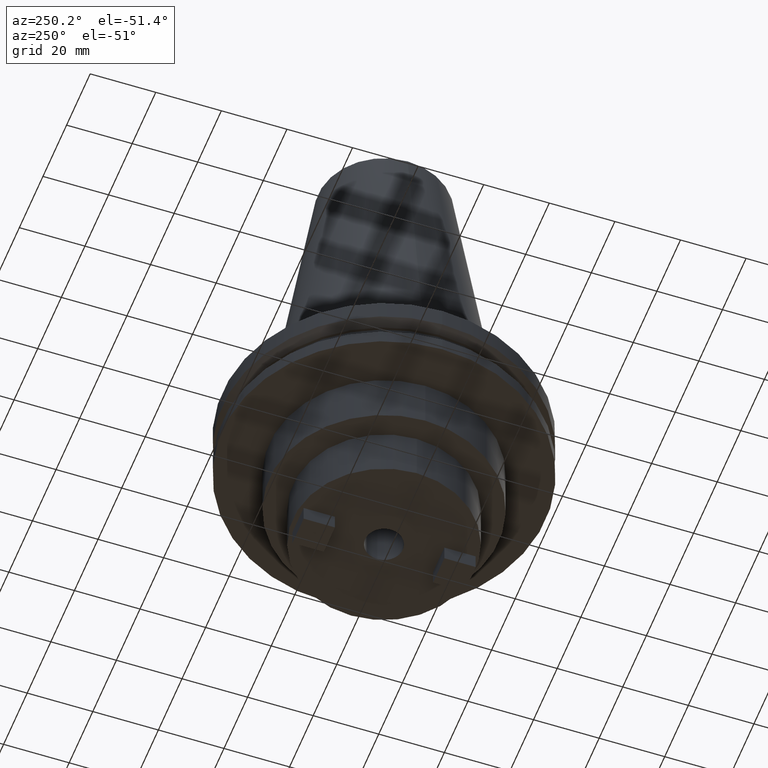
[diagram: clean part render]
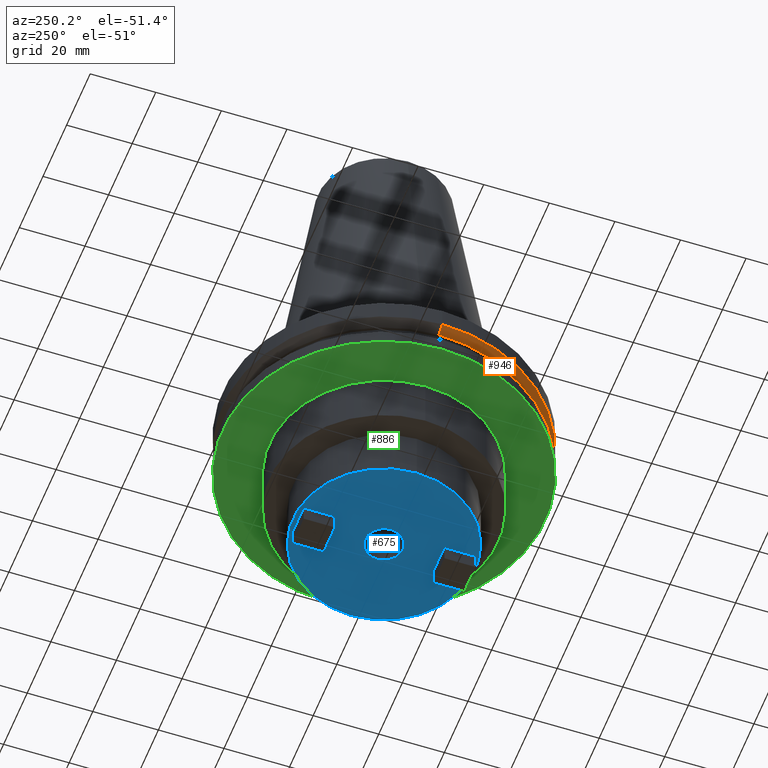
[diagram: same view with three faces highlighted in distinct colors, each labeled with its STEP entity id]
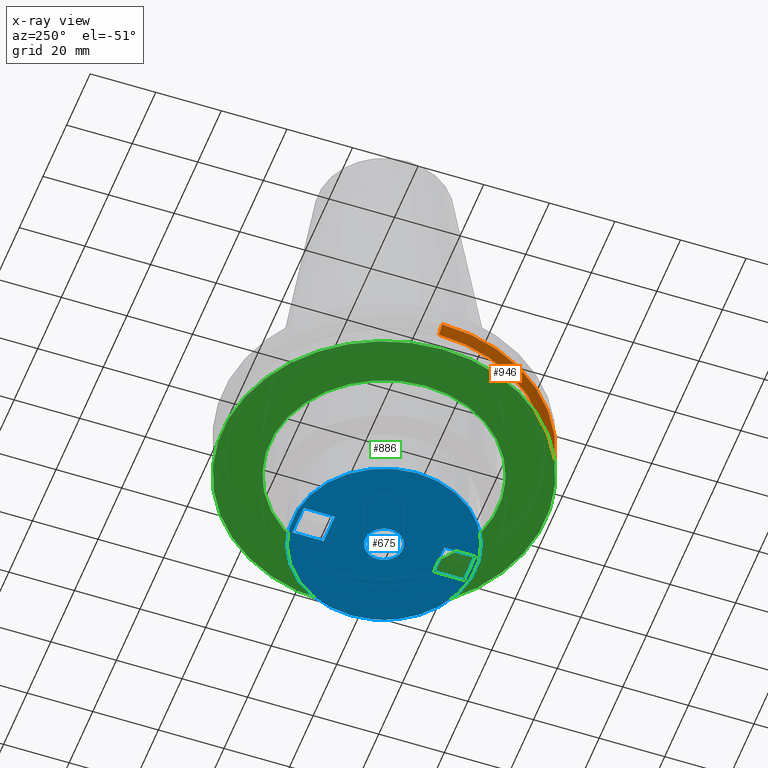
[diagram: x-ray of the same camera — body ghosted, the three highlighted faces saturated]
A machine part, auxiliary view with three faces highlighted in distinct colors.
The next image is the same camera in x-ray (body ghosted, the three faces saturated) — at least one of them is partly hidden behind the body in this view.
Their STEP definitions:

[orange] entity #946 — the highlighted conical surface has half-angle 60 deg.
#17 = AXIS2_PLACEMENT_3D ( 'NONE', #417, #656, #907 ) ;
#24 = EDGE_CURVE ( 'NONE', #980, #34, #575, .T. ) ;
#26 = DIRECTION ( 'NONE',  ( 1.000000000000000000, 0.000000000000000000, 0.000000000000000000 ) ) ;
#34 = VERTEX_POINT ( 'NONE', #73 ) ;
#45 = EDGE_CURVE ( 'NONE', #980, #103, #132, .T. ) ;
#47 = EDGE_LOOP ( 'NONE', ( #393, #561, #582, #827 ) ) ;
#57 = EDGE_CURVE ( 'NONE', #103, #1060, #983, .T. ) ;
#73 = CARTESIAN_POINT ( 'NONE',  ( -49.21500000000000341, 6.027099222003699404E-15, -7.602389855251287187 ) ) ;
#103 = VERTEX_POINT ( 'NONE', #204 ) ;
#132 = CIRCLE ( 'NONE', #271, 46.43919780457007818 ) ;
#151 = CARTESIAN_POINT ( 'NONE',  ( -46.43919780457007818, 5.687161494633754392E-15, -9.204999999999991189 ) ) ;
#156 = DIRECTION ( 'NONE',  ( -0.8660254037844273833, 1.060575238724893110E-16, 0.5000000000000195399 ) ) ;
#186 = CARTESIAN_POINT ( 'NONE',  ( 46.43919780457007818, 0.000000000000000000, -9.204999999999991189 ) ) ;
#204 = CARTESIAN_POINT ( 'NONE',  ( 46.43919780457007818, 0.000000000000000000, -9.204999999999991189 ) ) ;
#271 = AXIS2_PLACEMENT_3D ( 'NONE', #813, #649, #312 ) ;
#312 = DIRECTION ( 'NONE',  ( 1.000000000000000000, 0.000000000000000000, 0.000000000000000000 ) ) ;
#337 = EDGE_CURVE ( 'NONE', #34, #1060, #440, .T. ) ;
#357 = VECTOR ( 'NONE', #526, 1000.000000000000000 ) ;
#393 = ORIENTED_EDGE ( 'NONE', *, *, #24, .F. ) ;
#415 = FACE_OUTER_BOUND ( 'NONE', #47, .T. ) ;
#417 = CARTESIAN_POINT ( 'NONE',  ( 0.000000000000000000, 0.000000000000000000, -7.602389855251287187 ) ) ;
#440 = CIRCLE ( 'NONE', #17, 49.21500000000000341 ) ;
#490 = AXIS2_PLACEMENT_3D ( 'NONE', #660, #585, #26 ) ;
#525 = CARTESIAN_POINT ( 'NONE',  ( 49.21500000000000341, 0.000000000000000000, -7.602389855251287187 ) ) ;
#526 = DIRECTION ( 'NONE',  ( 0.8660254037844273833, 0.000000000000000000, 0.5000000000000195399 ) ) ;
#561 = ORIENTED_EDGE ( 'NONE', *, *, #45, .T. ) ;
#575 = LINE ( 'NONE', #151, #590 ) ;
#582 = ORIENTED_EDGE ( 'NONE', *, *, #57, .T. ) ;
#585 = DIRECTION ( 'NONE',  ( -0.000000000000000000, -0.000000000000000000, 1.000000000000000000 ) ) ;
#590 = VECTOR ( 'NONE', #156, 1000.000000000000000 ) ;
#649 = DIRECTION ( 'NONE',  ( -0.000000000000000000, -0.000000000000000000, 1.000000000000000000 ) ) ;
#656 = DIRECTION ( 'NONE',  ( -0.000000000000000000, -0.000000000000000000, 1.000000000000000000 ) ) ;
#660 = CARTESIAN_POINT ( 'NONE',  ( 0.000000000000000000, 0.000000000000000000, -9.204999999999991189 ) ) ;
#813 = CARTESIAN_POINT ( 'NONE',  ( 0.000000000000000000, 0.000000000000000000, -9.204999999999991189 ) ) ;
#827 = ORIENTED_EDGE ( 'NONE', *, *, #337, .F. ) ;
#907 = DIRECTION ( 'NONE',  ( 1.000000000000000000, 0.000000000000000000, 0.000000000000000000 ) ) ;
#944 = CARTESIAN_POINT ( 'NONE',  ( -46.43919780457007818, 5.857130358318727293E-15, -9.204999999999991189 ) ) ;
#946 = ADVANCED_FACE ( 'NONE', ( #415 ), #1018, .T. ) ;
#980 = VERTEX_POINT ( 'NONE', #944 ) ;
#983 = LINE ( 'NONE', #186, #357 ) ;
#1018 = CONICAL_SURFACE ( 'NONE', #490, 46.43919780457007818, 1.047197551196575205 ) ;
#1060 = VERTEX_POINT ( 'NONE', #525 ) ;

[blue] entity #675 — the highlighted planar face has unit normal (0, -0, 1).
#1 = EDGE_LOOP ( 'NONE', ( #708, #64, #289, #433 ) ) ;
#18 = VERTEX_POINT ( 'NONE', #659 ) ;
#55 = PLANE ( 'NONE',  #615 ) ;
#64 = ORIENTED_EDGE ( 'NONE', *, *, #354, .F. ) ;
#65 = FACE_BOUND ( 'NONE', #1, .T. ) ;
#67 = VERTEX_POINT ( 'NONE', #284 ) ;
#94 = VERTEX_POINT ( 'NONE', #604 ) ;
#95 = LINE ( 'NONE', #456, #1035 ) ;
#99 = VERTEX_POINT ( 'NONE', #517 ) ;
#118 = CARTESIAN_POINT ( 'NONE',  ( 4.762499999999988631, -26.20750000000000668, -50.79999999999999716 ) ) ;
#128 = EDGE_CURVE ( 'NONE', #999, #336, #349, .T. ) ;
#137 = LINE ( 'NONE', #634, #767 ) ;
#142 = CIRCLE ( 'NONE', #350, 5.754999999999987459 ) ;
#146 = DIRECTION ( 'NONE',  ( 1.000000000000000000, -1.456985596620939003E-15, -0.000000000000000000 ) ) ;
#148 = DIRECTION ( 'NONE',  ( 0.000000000000000000, -0.000000000000000000, 1.000000000000000000 ) ) ;
#155 = LINE ( 'NONE', #734, #1070 ) ;
#158 = CIRCLE ( 'NONE', #646, 5.754999999999987459 ) ;
#194 = VECTOR ( 'NONE', #237, 1000.000000000000000 ) ;
#225 = DIRECTION ( 'NONE',  ( 1.000000000000000000, 0.000000000000000000, 0.000000000000000000 ) ) ;
#231 = CARTESIAN_POINT ( 'NONE',  ( 0.000000000000000000, 0.000000000000000000, -50.79999999999999716 ) ) ;
#235 = FACE_BOUND ( 'NONE', #910, .T. ) ;
#237 = DIRECTION ( 'NONE',  ( -2.731847993664259274E-16, 1.000000000000000000, 0.000000000000000000 ) ) ;
#249 = CARTESIAN_POINT ( 'NONE',  ( -4.762500000000017053, -26.20750000000000668, -50.79999999999999716 ) ) ;
#254 = EDGE_CURVE ( 'NONE', #323, #999, #137, .T. ) ;
#273 = CARTESIAN_POINT ( 'NONE',  ( 4.762499999999986855, 16.68250000000001876, -50.79999999999999716 ) ) ;
#284 = CARTESIAN_POINT ( 'NONE',  ( -4.762500000000019718, -16.68249999999999034, -50.79999999999999716 ) ) ;
#289 = ORIENTED_EDGE ( 'NONE', *, *, #576, .F. ) ;
#299 = ORIENTED_EDGE ( 'NONE', *, *, #380, .F. ) ;
#314 = CARTESIAN_POINT ( 'NONE',  ( 0.000000000000000000, 27.80030000000000001, -50.79999999999999716 ) ) ;
#323 = VERTEX_POINT ( 'NONE', #867 ) ;
#330 = CIRCLE ( 'NONE', #601, 27.80030000000000001 ) ;
#336 = VERTEX_POINT ( 'NONE', #489 ) ;
#340 = EDGE_CURVE ( 'NONE', #99, #18, #142, .T. ) ;
#347 = ORIENTED_EDGE ( 'NONE', *, *, #340, .T. ) ;
#349 = LINE ( 'NONE', #273, #951 ) ;
#350 = AXIS2_PLACEMENT_3D ( 'NONE', #574, #739, #501 ) ;
#354 = EDGE_CURVE ( 'NONE', #840, #988, #671, .T. ) ;
#368 = VECTOR ( 'NONE', #653, 1000.000000000000000 ) ;
#380 = EDGE_CURVE ( 'NONE', #625, #323, #155, .T. ) ;
#383 = FACE_OUTER_BOUND ( 'NONE', #1066, .T. ) ;
#405 = FACE_BOUND ( 'NONE', #824, .T. ) ;
#428 = DIRECTION ( 'NONE',  ( -0.000000000000000000, -0.000000000000000000, 1.000000000000000000 ) ) ;
#433 = ORIENTED_EDGE ( 'NONE', *, *, #461, .F. ) ;
#442 = CIRCLE ( 'NONE', #548, 27.80030000000000001 ) ;
#456 = CARTESIAN_POINT ( 'NONE',  ( -4.762500000000017941, 26.20750000000002089, -50.79999999999999716 ) ) ;
#461 = EDGE_CURVE ( 'NONE', #67, #773, #1084, .T. ) ;
#468 = EDGE_CURVE ( 'NONE', #988, #67, #663, .T. ) ;
#489 = CARTESIAN_POINT ( 'NONE',  ( -4.762500000000018829, 16.68250000000002231, -50.79999999999999716 ) ) ;
#492 = CARTESIAN_POINT ( 'NONE',  ( 0.000000000000000000, 0.000000000000000000, -50.79999999999999716 ) ) ;
#501 = DIRECTION ( 'NONE',  ( 1.000000000000000000, 0.000000000000000000, 0.000000000000000000 ) ) ;
#517 = CARTESIAN_POINT ( 'NONE',  ( -5.754999999999987459, 7.047842329093002964E-16, -50.79999999999999716 ) ) ;
#548 = AXIS2_PLACEMENT_3D ( 'NONE', #231, #428, #828 ) ;
#553 = EDGE_CURVE ( 'NONE', #336, #625, #95, .T. ) ;
#562 = DIRECTION ( 'NONE',  ( 1.000000000000000000, 0.000000000000000000, 0.000000000000000000 ) ) ;
#574 = CARTESIAN_POINT ( 'NONE',  ( 0.000000000000000000, 0.000000000000000000, -50.79999999999999716 ) ) ;
#576 = EDGE_CURVE ( 'NONE', #773, #840, #863, .T. ) ;
#597 = DIRECTION ( 'NONE',  ( -1.821231995776175725E-16, -1.000000000000000000, -0.000000000000000000 ) ) ;
#601 = AXIS2_PLACEMENT_3D ( 'NONE', #492, #834, #1087 ) ;
#604 = CARTESIAN_POINT ( 'NONE',  ( 27.80030000000000001, 0.000000000000000000, -50.79999999999999716 ) ) ;
#615 = AXIS2_PLACEMENT_3D ( 'NONE', #314, #148, #562 ) ;
#625 = VERTEX_POINT ( 'NONE', #755 ) ;
#634 = CARTESIAN_POINT ( 'NONE',  ( 4.762499999999981526, 26.20750000000001734, -50.79999999999999716 ) ) ;
#638 = ORIENTED_EDGE ( 'NONE', *, *, #128, .F. ) ;
#640 = CARTESIAN_POINT ( 'NONE',  ( 0.000000000000000000, 0.000000000000000000, -50.79999999999999716 ) ) ;
#646 = AXIS2_PLACEMENT_3D ( 'NONE', #640, #806, #225 ) ;
#648 = DIRECTION ( 'NONE',  ( 1.000000000000000000, -3.642463991552351451E-16, -0.000000000000000000 ) ) ;
#653 = DIRECTION ( 'NONE',  ( -1.000000000000000000, 0.000000000000000000, 0.000000000000000000 ) ) ;
#659 = CARTESIAN_POINT ( 'NONE',  ( 5.754999999999987459, 0.000000000000000000, -50.79999999999999716 ) ) ;
#663 = LINE ( 'NONE', #249, #194 ) ;
#671 = LINE ( 'NONE', #1080, #368 ) ;
#675 = ADVANCED_FACE ( 'NONE', ( #235, #383, #405, #65 ), #55, .F. ) ;
#684 = CARTESIAN_POINT ( 'NONE',  ( -4.762500000000017053, -26.20750000000000668, -50.79999999999999716 ) ) ;
#690 = EDGE_CURVE ( 'NONE', #18, #99, #158, .T. ) ;
#708 = ORIENTED_EDGE ( 'NONE', *, *, #468, .F. ) ;
#711 = VECTOR ( 'NONE', #146, 1000.000000000000000 ) ;
#734 = CARTESIAN_POINT ( 'NONE',  ( 4.762499999999981526, 26.20750000000001734, -50.79999999999999716 ) ) ;
#739 = DIRECTION ( 'NONE',  ( -0.000000000000000000, -0.000000000000000000, 1.000000000000000000 ) ) ;
#755 = CARTESIAN_POINT ( 'NONE',  ( -4.762500000000017941, 26.20750000000002444, -50.79999999999999716 ) ) ;
#767 = VECTOR ( 'NONE', #790, 1000.000000000000000 ) ;
#773 = VERTEX_POINT ( 'NONE', #891 ) ;
#788 = EDGE_CURVE ( 'NONE', #882, #94, #442, .T. ) ;
#790 = DIRECTION ( 'NONE',  ( 6.374311985216615162E-16, -1.000000000000000000, 0.000000000000000000 ) ) ;
#806 = DIRECTION ( 'NONE',  ( -0.000000000000000000, -0.000000000000000000, 1.000000000000000000 ) ) ;
#821 = ORIENTED_EDGE ( 'NONE', *, *, #690, .T. ) ;
#824 = EDGE_LOOP ( 'NONE', ( #821, #347 ) ) ;
#828 = DIRECTION ( 'NONE',  ( 1.000000000000000000, 0.000000000000000000, 0.000000000000000000 ) ) ;
#834 = DIRECTION ( 'NONE',  ( -0.000000000000000000, -0.000000000000000000, 1.000000000000000000 ) ) ;
#840 = VERTEX_POINT ( 'NONE', #841 ) ;
#841 = CARTESIAN_POINT ( 'NONE',  ( 4.762499999999988631, -26.20750000000001023, -50.79999999999999716 ) ) ;
#843 = DIRECTION ( 'NONE',  ( 9.106159978880878627E-17, 1.000000000000000000, -0.000000000000000000 ) ) ;
#850 = DIRECTION ( 'NONE',  ( -1.000000000000000000, 3.642463991552348493E-16, 0.000000000000000000 ) ) ;
#863 = LINE ( 'NONE', #118, #996 ) ;
#867 = CARTESIAN_POINT ( 'NONE',  ( 4.762499999999981526, 26.20750000000001734, -50.79999999999999716 ) ) ;
#879 = ORIENTED_EDGE ( 'NONE', *, *, #553, .F. ) ;
#882 = VERTEX_POINT ( 'NONE', #995 ) ;
#887 = ORIENTED_EDGE ( 'NONE', *, *, #788, .F. ) ;
#891 = CARTESIAN_POINT ( 'NONE',  ( 4.762499999999990408, -16.68250000000000455, -50.79999999999999716 ) ) ;
#899 = EDGE_CURVE ( 'NONE', #94, #882, #330, .T. ) ;
#910 = EDGE_LOOP ( 'NONE', ( #879, #638, #943, #299 ) ) ;
#943 = ORIENTED_EDGE ( 'NONE', *, *, #254, .F. ) ;
#950 = CARTESIAN_POINT ( 'NONE',  ( 4.762499999999986855, 16.68250000000002231, -50.79999999999999716 ) ) ;
#951 = VECTOR ( 'NONE', #850, 1000.000000000000000 ) ;
#988 = VERTEX_POINT ( 'NONE', #684 ) ;
#995 = CARTESIAN_POINT ( 'NONE',  ( -27.80030000000000001, 3.404554841033616429E-15, -50.79999999999999716 ) ) ;
#996 = VECTOR ( 'NONE', #597, 1000.000000000000000 ) ;
#999 = VERTEX_POINT ( 'NONE', #950 ) ;
#1005 = ORIENTED_EDGE ( 'NONE', *, *, #899, .F. ) ;
#1035 = VECTOR ( 'NONE', #843, 1000.000000000000000 ) ;
#1066 = EDGE_LOOP ( 'NONE', ( #1005, #887 ) ) ;
#1067 = CARTESIAN_POINT ( 'NONE',  ( 4.762499999999990408, -16.68250000000000810, -50.79999999999999716 ) ) ;
#1070 = VECTOR ( 'NONE', #648, 1000.000000000000000 ) ;
#1080 = CARTESIAN_POINT ( 'NONE',  ( 4.762499999999988631, -26.20750000000000668, -50.79999999999999716 ) ) ;
#1084 = LINE ( 'NONE', #1067, #711 ) ;
#1087 = DIRECTION ( 'NONE',  ( 1.000000000000000000, 0.000000000000000000, 0.000000000000000000 ) ) ;

[green] entity #886 — the highlighted planar face has unit normal (0, -0, 1).
#43 = EDGE_LOOP ( 'NONE', ( #61, #777 ) ) ;
#44 = DIRECTION ( 'NONE',  ( 1.000000000000000000, 0.000000000000000000, 0.000000000000000000 ) ) ;
#60 = DIRECTION ( 'NONE',  ( 1.000000000000000000, 0.000000000000000000, 0.000000000000000000 ) ) ;
#61 = ORIENTED_EDGE ( 'NONE', *, *, #628, .F. ) ;
#74 = DIRECTION ( 'NONE',  ( -0.000000000000000000, -0.000000000000000000, 1.000000000000000000 ) ) ;
#100 = DIRECTION ( 'NONE',  ( 1.000000000000000000, 0.000000000000000000, 0.000000000000000000 ) ) ;
#107 = CIRCLE ( 'NONE', #697, 49.21499999999998920 ) ;
#150 = CARTESIAN_POINT ( 'NONE',  ( -49.21499999999998920, 6.027099222003697037E-15, -19.04999999999999716 ) ) ;
#179 = DIRECTION ( 'NONE',  ( -0.000000000000000000, -0.000000000000000000, 1.000000000000000000 ) ) ;
#207 = VERTEX_POINT ( 'NONE', #296 ) ;
#265 = FACE_OUTER_BOUND ( 'NONE', #43, .T. ) ;
#286 = CARTESIAN_POINT ( 'NONE',  ( 0.000000000000000000, 0.000000000000000000, -19.04999999999999716 ) ) ;
#296 = CARTESIAN_POINT ( 'NONE',  ( 49.21499999999998920, 0.000000000000000000, -19.04999999999999716 ) ) ;
#320 = CARTESIAN_POINT ( 'NONE',  ( 0.000000000000000000, 0.000000000000000000, -19.04999999999999716 ) ) ;
#333 = VERTEX_POINT ( 'NONE', #991 ) ;
#371 = AXIS2_PLACEMENT_3D ( 'NONE', #963, #558, #60 ) ;
#419 = VERTEX_POINT ( 'NONE', #150 ) ;
#463 = EDGE_LOOP ( 'NONE', ( #900, #736 ) ) ;
#558 = DIRECTION ( 'NONE',  ( -0.000000000000000000, -0.000000000000000000, 1.000000000000000000 ) ) ;
#577 = DIRECTION ( 'NONE',  ( 1.000000000000000000, 0.000000000000000000, 0.000000000000000000 ) ) ;
#593 = VERTEX_POINT ( 'NONE', #627 ) ;
#616 = EDGE_CURVE ( 'NONE', #419, #207, #107, .T. ) ;
#627 = CARTESIAN_POINT ( 'NONE',  ( -34.92499999999999716, 4.277078946022130887E-15, -19.04999999999999716 ) ) ;
#628 = EDGE_CURVE ( 'NONE', #207, #419, #875, .T. ) ;
#633 = AXIS2_PLACEMENT_3D ( 'NONE', #837, #792, #44 ) ;
#697 = AXIS2_PLACEMENT_3D ( 'NONE', #286, #179, #1033 ) ;
#733 = AXIS2_PLACEMENT_3D ( 'NONE', #320, #74, #577 ) ;
#736 = ORIENTED_EDGE ( 'NONE', *, *, #928, .T. ) ;
#738 = EDGE_CURVE ( 'NONE', #333, #593, #770, .T. ) ;
#741 = FACE_BOUND ( 'NONE', #463, .T. ) ;
#745 = CARTESIAN_POINT ( 'NONE',  ( 0.000000000000000000, 49.21499999999998920, -19.04999999999999716 ) ) ;
#770 = CIRCLE ( 'NONE', #371, 34.92499999999999716 ) ;
#777 = ORIENTED_EDGE ( 'NONE', *, *, #616, .F. ) ;
#792 = DIRECTION ( 'NONE',  ( -0.000000000000000000, -0.000000000000000000, 1.000000000000000000 ) ) ;
#837 = CARTESIAN_POINT ( 'NONE',  ( 0.000000000000000000, 0.000000000000000000, -19.04999999999999716 ) ) ;
#847 = PLANE ( 'NONE',  #962 ) ;
#875 = CIRCLE ( 'NONE', #633, 49.21499999999998920 ) ;
#886 = ADVANCED_FACE ( 'NONE', ( #265, #741 ), #847, .F. ) ;
#900 = ORIENTED_EDGE ( 'NONE', *, *, #738, .T. ) ;
#917 = DIRECTION ( 'NONE',  ( 0.000000000000000000, -0.000000000000000000, 1.000000000000000000 ) ) ;
#928 = EDGE_CURVE ( 'NONE', #593, #333, #997, .T. ) ;
#962 = AXIS2_PLACEMENT_3D ( 'NONE', #745, #917, #100 ) ;
#963 = CARTESIAN_POINT ( 'NONE',  ( 0.000000000000000000, 0.000000000000000000, -19.04999999999999716 ) ) ;
#991 = CARTESIAN_POINT ( 'NONE',  ( 34.92499999999999716, 0.000000000000000000, -19.04999999999999716 ) ) ;
#997 = CIRCLE ( 'NONE', #733, 34.92499999999999716 ) ;
#1033 = DIRECTION ( 'NONE',  ( 1.000000000000000000, 0.000000000000000000, 0.000000000000000000 ) ) ;